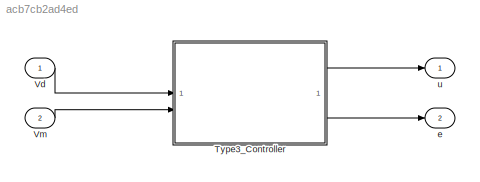
MODEL slx_acb7cb2ad4ed
KIND model
CONFIG AbsTol = auto
CONFIG EnableMultiTasking = off
CONFIG FixedStep = 1e-5
CONFIG MaxStep = 1e-5
CONFIG MinStep = auto
CONFIG RelTol = 1e-3
CONFIG SampleTimeConstraint = Unconstrained
CONFIG SolverName = ode23tb
CONFIG StartTime = 0.0
CONFIG StopTime = 10.0
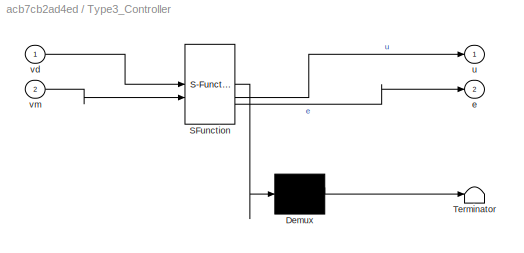
BLOCK [SubSystem] Type3_Controller
  ErrorFcn = Stateflow.Translate.translate
  PermitHierarchicalResolution = ExplicitOnly
  SFBlockType = MATLAB Function
  TreatAsAtomicUnit = on
BLOCK [Demux] Type3_Controller/ Demux 
  Outputs = 1
BLOCK [S-Function] Type3_Controller/ SFunction 
  EnableBusSupport = on
  FunctionName = sf_sfun
  PortCounts = [2 3]
  SFcnIsStateOwnerBlock = off
  SFunctionDeploymentMode = off
  Tag = Stateflow S-Function 2
BLOCK [Terminator] Type3_Controller/ Terminator 
BLOCK [Outport] Type3_Controller/e
  Port = 2
BLOCK [Outport] Type3_Controller/u
BLOCK [Inport] Type3_Controller/vd
BLOCK [Inport] Type3_Controller/vm
  Port = 2
BLOCK [Inport] Vd
BLOCK [Inport] Vm
  Port = 2
BLOCK [Outport] e
  Port = 2
BLOCK [Outport] u
LINE Type3_Controller:1 -> u:1
LINE Type3_Controller:2 -> e:1
LINE Vd:1 -> Type3_Controller:1
LINE Vm:1 -> Type3_Controller:2
CHART Type3_Controller states=1 transitions=1
  STATE_LABEL 'eML_blk_kernel()'
  STATE_LABEL 'SCRIPT:\nfunction [u, e] = fcn(vd, vm)\n    % Simplest disturbance model: wT[k+1] = wT[k]\n\n    alph = 1;\n    beta = 0.1;\n\n    lambda_c = 0.9100;\n    lambda_e = 0.2846;\n\n    % Fixed parameters\n    a1 = 1.595052025060797;\n    a2 = -0.599079946700523;\n\n    % B inverse matrix (6×6)\n    B_inv = [\n        1254.431611705956, 365.9220943459926, 362.7155917884968, 509.3482978358023, 510.7001779284304, 478.05...<+2018ch>'
CHART  states=0 transitions=0
